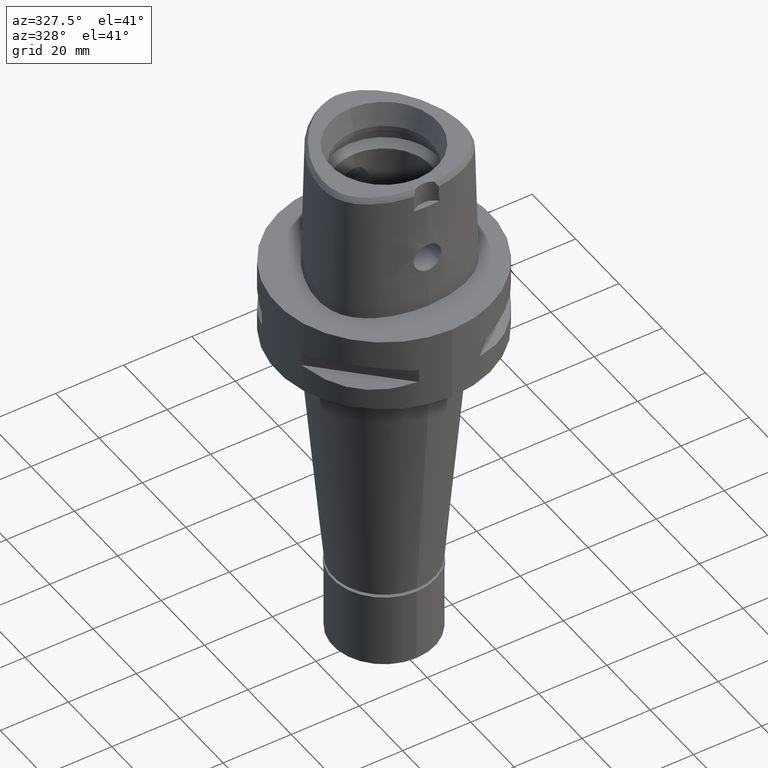
[diagram: clean part render]
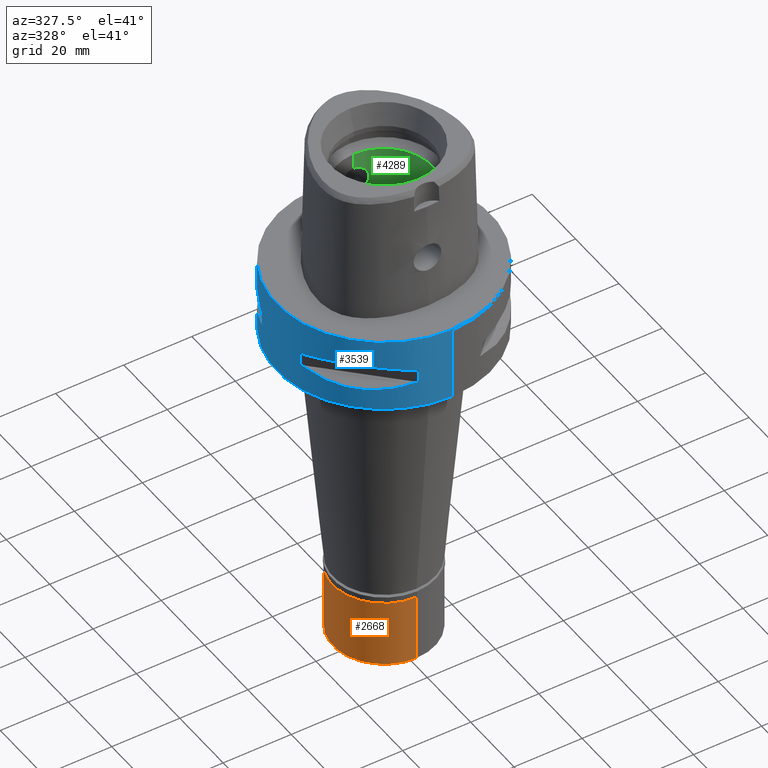
[diagram: same view with three faces highlighted in distinct colors, each labeled with its STEP entity id]
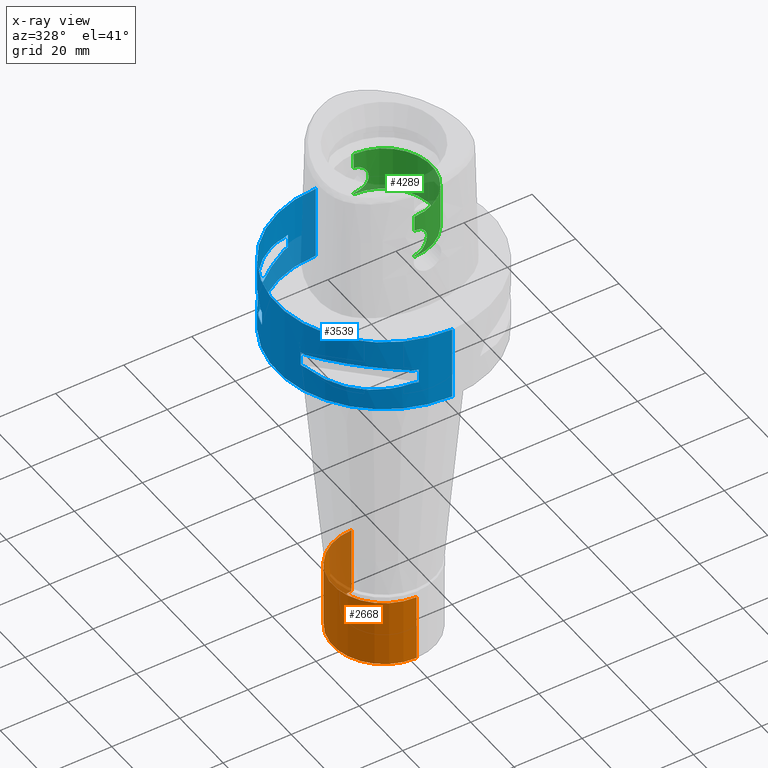
[diagram: x-ray of the same camera — body ghosted, the three highlighted faces saturated]
A machine part, auxiliary view with three faces highlighted in distinct colors.
The next image is the same camera in x-ray (body ghosted, the three faces saturated) — at least one of them is partly hidden behind the body in this view.
Their STEP definitions:

[orange] entity #2668 — the highlighted cylindrical surface (partial cylindrical patch) has radius 15 mm, axis along (0, 0, -1).
#65 = DIRECTION ( 'NONE',  ( 0.0000000000000000000, 0.0000000000000000000, -1.000000000000000000 ) ) ;
#223 = EDGE_LOOP ( 'NONE', ( #2487, #3779, #378, #726 ) ) ;
#235 = CARTESIAN_POINT ( 'NONE',  ( 0.0000000000000000000, 0.0000000000000000000, -22.00000000000000000 ) ) ;
#357 = DIRECTION ( 'NONE',  ( 0.0000000000000000000, 0.0000000000000000000, -1.000000000000000000 ) ) ;
#378 = ORIENTED_EDGE ( 'NONE', *, *, #5089, .T. ) ;
#513 = VECTOR ( 'NONE', #4003, 1000.000000000000000 ) ;
#644 = EDGE_CURVE ( 'NONE', #3334, #3359, #2375, .T. ) ;
#726 = ORIENTED_EDGE ( 'NONE', *, *, #2523, .T. ) ;
#910 = VERTEX_POINT ( 'NONE', #2765 ) ;
#1120 = CARTESIAN_POINT ( 'NONE',  ( 0.0000000000000000000, -15.00000000000000000, -2.000000000000000000 ) ) ;
#1251 = AXIS2_PLACEMENT_3D ( 'NONE', #2675, #357, #3516 ) ;
#1281 = VERTEX_POINT ( 'NONE', #5061 ) ;
#1458 = DIRECTION ( 'NONE',  ( 0.0000000000000000000, 1.000000000000000000, 0.0000000000000000000 ) ) ;
#1513 = CIRCLE ( 'NONE', #2183, 15.00000000000000000 ) ;
#1982 = AXIS2_PLACEMENT_3D ( 'NONE', #2066, #65, #5106 ) ;
#2066 = CARTESIAN_POINT ( 'NONE',  ( 0.0000000000000000000, 0.0000000000000000000, -2.000000000000000000 ) ) ;
#2183 = AXIS2_PLACEMENT_3D ( 'NONE', #235, #5009, #1458 ) ;
#2375 = LINE ( 'NONE', #2753, #513 ) ;
#2487 = ORIENTED_EDGE ( 'NONE', *, *, #3945, .T. ) ;
#2504 = DIRECTION ( 'NONE',  ( 0.0000000000000000000, 0.0000000000000000000, -1.000000000000000000 ) ) ;
#2523 = EDGE_CURVE ( 'NONE', #1281, #910, #2882, .T. ) ;
#2668 = ADVANCED_FACE ( 'NONE', ( #2695 ), #3800, .T. ) ;
#2675 = CARTESIAN_POINT ( 'NONE',  ( 0.0000000000000000000, 0.0000000000000000000, 0.0000000000000000000 ) ) ;
#2695 = FACE_OUTER_BOUND ( 'NONE', #223, .T. ) ;
#2753 = CARTESIAN_POINT ( 'NONE',  ( 0.0000000000000000000, -15.00000000000000000, -2.000000000000000000 ) ) ;
#2765 = CARTESIAN_POINT ( 'NONE',  ( 0.0000000000000000000, 15.00000000000000000, -22.00000000000000000 ) ) ;
#2882 = LINE ( 'NONE', #4107, #4986 ) ;
#3334 = VERTEX_POINT ( 'NONE', #1120 ) ;
#3359 = VERTEX_POINT ( 'NONE', #5013 ) ;
#3516 = DIRECTION ( 'NONE',  ( 0.0000000000000000000, -1.000000000000000000, 0.0000000000000000000 ) ) ;
#3779 = ORIENTED_EDGE ( 'NONE', *, *, #644, .F. ) ;
#3800 = CYLINDRICAL_SURFACE ( 'NONE', #1251, 15.00000000000000000 ) ;
#3945 = EDGE_CURVE ( 'NONE', #910, #3359, #1513, .T. ) ;
#4003 = DIRECTION ( 'NONE',  ( 0.0000000000000000000, 0.0000000000000000000, -1.000000000000000000 ) ) ;
#4107 = CARTESIAN_POINT ( 'NONE',  ( 0.0000000000000000000, 15.00000000000000000, -2.000000000000000000 ) ) ;
#4214 = CIRCLE ( 'NONE', #1982, 15.00000000000000000 ) ;
#4986 = VECTOR ( 'NONE', #2504, 1000.000000000000000 ) ;
#5009 = DIRECTION ( 'NONE',  ( 0.0000000000000000000, 0.0000000000000000000, 1.000000000000000000 ) ) ;
#5013 = CARTESIAN_POINT ( 'NONE',  ( 0.0000000000000000000, -15.00000000000000000, -22.00000000000000000 ) ) ;
#5061 = CARTESIAN_POINT ( 'NONE',  ( 0.0000000000000000000, 15.00000000000000000, -2.000000000000000000 ) ) ;
#5089 = EDGE_CURVE ( 'NONE', #3334, #1281, #4214, .T. ) ;
#5106 = DIRECTION ( 'NONE',  ( 0.0000000000000000000, -1.000000000000000000, 0.0000000000000000000 ) ) ;

[blue] entity #3539 — the highlighted cylindrical surface (partial cylindrical patch) has radius 31.5 mm, axis along (0, 0, -1).
#17 = VERTEX_POINT ( 'NONE', #2880 ) ;
#28 = CARTESIAN_POINT ( 'NONE',  ( -15.11986997310366299, 27.64634172018154246, -15.11207862403683144 ) ) ;
#68 = CARTESIAN_POINT ( 'NONE',  ( -24.23018836745557181, 20.18579225685711265, -15.78559396978928397 ) ) ;
#100 = CARTESIAN_POINT ( 'NONE',  ( -8.981198972019999616, -30.19251670572000279, -14.05000000000000071 ) ) ;
#161 = CARTESIAN_POINT ( 'NONE',  ( -26.64486562695712379, -16.80193241490734835, -15.38992683735741451 ) ) ;
#165 = VERTEX_POINT ( 'NONE', #4713 ) ;
#168 = B_SPLINE_CURVE_WITH_KNOTS ( 'NONE', 3,
 ( #1052, #2623, #660, #1880, #2248, #4265, #3851, #279, #3036, #5021, #4633, #327, #5077, #1079, #708, #3871, #2649, #4239, #687, #1522, #3463, #5046, #4314, #2349 ),
 .UNSPECIFIED., .F., .F.,
 ( 4, 1, 1, 1, 1, 1, 2, 2, 2, 1, 1, 1, 1, 1, 2, 2, 4 ),
 ( 0.0000000000000000000, 0.1249999999999937828, 0.1874999999999907296, 0.2187499999999890365, 0.2343749999999882316, 0.2421874999999878431, 0.2460937499999878708, 0.2499999999999878986, 0.4999999999999847899, 0.6249999999999832356, 0.6874999999999825695, 0.7187499999999821254, 0.7343749999999817923, 0.7421874999999815703, 0.7460937499999819034, 0.7499999999999821254, 1.000000000000000000 ),
 .UNSPECIFIED. ) ;
#178 = ORIENTED_EDGE ( 'NONE', *, *, #1699, .T. ) ;
#191 = CIRCLE ( 'NONE', #3910, 31.50000000000000000 ) ;
#195 = CARTESIAN_POINT ( 'NONE',  ( -14.89252659056261052, -27.86285265926905197, -15.10765629751539230 ) ) ;
#201 = CARTESIAN_POINT ( 'NONE',  ( -16.89910283486678821, -26.58330558444515290, -8.595535286924912199 ) ) ;
#218 = EDGE_CURVE ( 'NONE', #1122, #1640, #3490, .T. ) ;
#249 = DIRECTION ( 'NONE',  ( 0.0000000000000000000, 0.0000000000000000000, 1.000000000000000000 ) ) ;
#272 = VERTEX_POINT ( 'NONE', #2648 ) ;
#279 = CARTESIAN_POINT ( 'NONE',  ( -26.64486562695828553, 16.80193241490740874, -8.610073162640123456 ) ) ;
#283 = B_SPLINE_CURVE_WITH_KNOTS ( 'NONE', 3,
 ( #891, #4946, #2548, #975, #2854, #4051, #2935, #559, #4133, #201, #2121, #4867, #923, #509, #2957, #584, #1002, #2574, #4105, #4164, #1339, #1705, #613, #2095 ),
 .UNSPECIFIED., .F., .F.,
 ( 4, 1, 1, 1, 1, 1, 2, 2, 2, 1, 1, 1, 1, 1, 2, 2, 4 ),
 ( 0.0000000000000000000, 0.1249999999999937828, 0.1874999999999907296, 0.2187499999999890365, 0.2343749999999882316, 0.2421874999999878431, 0.2460937499999878708, 0.2499999999999878986, 0.4999999999999847899, 0.6249999999999832356, 0.6874999999999825695, 0.7187499999999821254, 0.7343749999999817923, 0.7421874999999815703, 0.7460937499999819034, 0.7499999999999821254, 1.000000000000000000 ),
 .UNSPECIFIED. ) ;
#296 = DIRECTION ( 'NONE',  ( 0.0000000000000000000, 0.0000000000000000000, -1.000000000000000000 ) ) ;
#327 = CARTESIAN_POINT ( 'NONE',  ( -23.89673728052539659, 20.65093790437828858, -8.160641950984063087 ) ) ;
#388 = CARTESIAN_POINT ( 'NONE',  ( -8.981198972017999438, -30.19251670572000279, -14.05000000000000071 ) ) ;
#402 = EDGE_CURVE ( 'NONE', #1449, #588, #3180, .T. ) ;
#418 = FACE_BOUND ( 'NONE', #4077, .T. ) ;
#441 = CARTESIAN_POINT ( 'NONE',  ( -29.71690375017999841, -10.44775724750000023, -14.05000000000000071 ) ) ;
#447 = VERTEX_POINT ( 'NONE', #3377 ) ;
#451 = ORIENTED_EDGE ( 'NONE', *, *, #553, .T. ) ;
#461 = CARTESIAN_POINT ( 'NONE',  ( -13.25636937904505785, 28.62019653468586355, -14.74888225541535292 ) ) ;
#473 = VERTEX_POINT ( 'NONE', #1411 ) ;
#488 = CARTESIAN_POINT ( 'NONE',  ( -16.70616724745912407, 26.70521063584489596, -15.37546661817712490 ) ) ;
#492 = EDGE_CURVE ( 'NONE', #1449, #17, #929, .T. ) ;
#509 = CARTESIAN_POINT ( 'NONE',  ( -24.23018836743738191, -20.18579225689131817, -8.214406030202187736 ) ) ;
#512 = ORIENTED_EDGE ( 'NONE', *, *, #402, .F. ) ;
#519 = CARTESIAN_POINT ( 'NONE',  ( -26.54368690921645069, 16.96123479564930747, -15.41365572341317147 ) ) ;
#530 = CARTESIAN_POINT ( 'NONE',  ( -21.46242677078074834, -23.08532645888130830, -15.83938991065315172 ) ) ;
#536 = VERTEX_POINT ( 'NONE', #4229 ) ;
#553 = EDGE_CURVE ( 'NONE', #1122, #1100, #595, .T. ) ;
#559 = CARTESIAN_POINT ( 'NONE',  ( -16.80193241490740874, -26.64486562695828553, -8.610073162640123456 ) ) ;
#584 = CARTESIAN_POINT ( 'NONE',  ( -26.01217882834028217, -17.76952662673343397, -8.473347783734256566 ) ) ;
#588 = VERTEX_POINT ( 'NONE', #2014 ) ;
#589 = AXIS2_PLACEMENT_3D ( 'NONE', #621, #3732, #1739 ) ;
#595 = CIRCLE ( 'NONE', #1252, 31.50000000000001776 ) ;
#608 = CARTESIAN_POINT ( 'NONE',  ( -17.35163608579770766, -26.29071741523690875, -15.46976201925451022 ) ) ;
#613 = CARTESIAN_POINT ( 'NONE',  ( -28.91382665369138749, -12.73197616787516040, -9.345326382460914516 ) ) ;
#621 = CARTESIAN_POINT ( 'NONE',  ( 0.0000000000000000000, 0.0000000000000000000, -9.950000000000001066 ) ) ;
#630 = DIRECTION ( 'NONE',  ( 0.0000000000000000000, 0.0000000000000000000, -1.000000000000000000 ) ) ;
#642 = CARTESIAN_POINT ( 'NONE',  ( -30.19251670572000279, 8.981198972017999438, -9.950000000000001066 ) ) ;
#652 = ORIENTED_EDGE ( 'NONE', *, *, #1457, .T. ) ;
#660 = CARTESIAN_POINT ( 'NONE',  ( -28.62019653468352942, 13.25636937905195722, -9.251117744580772850 ) ) ;
#687 = CARTESIAN_POINT ( 'NONE',  ( -17.05047092244551621, 26.48642424310436638, -8.573291165920331025 ) ) ;
#700 = DIRECTION ( 'NONE',  ( -0.9584925938322735872, 0.2851174276831918153, 0.0000000000000000000 ) ) ;
#708 = CARTESIAN_POINT ( 'NONE',  ( -18.59229662067374633, 25.43927894890470753, -8.371338736649670764 ) ) ;
#733 = AXIS2_PLACEMENT_3D ( 'NONE', #1264, #3545, #847 ) ;
#764 = ORIENTED_EDGE ( 'NONE', *, *, #4352, .F. ) ;
#770 = LINE ( 'NONE', #388, #3473 ) ;
#786 = EDGE_CURVE ( 'NONE', #2906, #1855, #283, .T. ) ;
#796 = CARTESIAN_POINT ( 'NONE',  ( -16.86571563436660171, 26.60451452154748608, -15.39949295786010097 ) ) ;
#806 = EDGE_CURVE ( 'NONE', #1250, #473, #2145, .T. ) ;
#810 = DIRECTION ( 'NONE',  ( 0.0000000000000000000, 0.0000000000000000000, -1.000000000000000000 ) ) ;
#811 = AXIS2_PLACEMENT_3D ( 'NONE', #5012, #1949, #2741 ) ;
#830 = LINE ( 'NONE', #3605, #5043 ) ;
#847 = DIRECTION ( 'NONE',  ( -0.9433937698468619626, 0.3316748332540863653, 0.0000000000000000000 ) ) ;
#850 = CARTESIAN_POINT ( 'NONE',  ( -26.29071741523710060, 17.35163608579668804, -15.46976201925415317 ) ) ;
#891 = CARTESIAN_POINT ( 'NONE',  ( -10.44775724750000023, -29.71690375017999841, -9.949999999998999201 ) ) ;
#897 = DIRECTION ( 'NONE',  ( 0.0000000000000000000, 0.0000000000000000000, -1.000000000000000000 ) ) ;
#900 = CARTESIAN_POINT ( 'NONE',  ( -18.86897208075099996, 25.32725744466366891, -15.69588095933659488 ) ) ;
#915 = VECTOR ( 'NONE', #1679, 1000.000000000000000 ) ;
#923 = CARTESIAN_POINT ( 'NONE',  ( -23.08532645887192203, -21.46242677079834138, -8.160610089341528095 ) ) ;
#929 = CIRCLE ( 'NONE', #2812, 31.50000000000000711 ) ;
#945 = CARTESIAN_POINT ( 'NONE',  ( -20.18579225686149314, -24.23018836745477245, -15.78559396979075125 ) ) ;
#964 = CARTESIAN_POINT ( 'NONE',  ( -30.19251670572000279, 8.981198972019999616, -14.05000000000000071 ) ) ;
#975 = CARTESIAN_POINT ( 'NONE',  ( -15.11986997310926206, -27.64634172018019953, -8.887921375959432879 ) ) ;
#993 = CARTESIAN_POINT ( 'NONE',  ( -26.60451452154724805, -16.86571563436727317, -15.39949295786030348 ) ) ;
#998 = EDGE_CURVE ( 'NONE', #3671, #1204, #1199, .T. ) ;
#1002 = CARTESIAN_POINT ( 'NONE',  ( -26.29071741523354078, -17.35163608580538863, -8.530237980741757653 ) ) ;
#1017 = CARTESIAN_POINT ( 'NONE',  ( -29.71690375017999841, 10.44775724750000023, -14.05000000000000071 ) ) ;
#1052 = CARTESIAN_POINT ( 'NONE',  ( -29.71690375017999841, 10.44775724750000023, -9.949999999998999201 ) ) ;
#1079 = CARTESIAN_POINT ( 'NONE',  ( -20.18579225689131817, 24.23018836743738191, -8.214406030202187736 ) ) ;
#1100 = VERTEX_POINT ( 'NONE', #1017 ) ;
#1122 = VERTEX_POINT ( 'NONE', #964 ) ;
#1180 = CIRCLE ( 'NONE', #2243, 31.50000000000000711 ) ;
#1183 = AXIS2_PLACEMENT_3D ( 'NONE', #4120, #2536, #4455 ) ;
#1199 = LINE ( 'NONE', #2246, #2324 ) ;
#1204 = VERTEX_POINT ( 'NONE', #4330 ) ;
#1215 = CARTESIAN_POINT ( 'NONE',  ( -23.08532645888177015, 21.46242677077824368, -15.83938991065229196 ) ) ;
#1220 = DIRECTION ( 'NONE',  ( 0.0000000000000000000, -1.000000000000000000, 0.0000000000000000000 ) ) ;
#1239 = CARTESIAN_POINT ( 'NONE',  ( -26.42800887047543767, 17.14106442934696162, -15.43984550238475251 ) ) ;
#1250 = VERTEX_POINT ( 'NONE', #3914 ) ;
#1252 = AXIS2_PLACEMENT_3D ( 'NONE', #3792, #296, #700 ) ;
#1264 = CARTESIAN_POINT ( 'NONE',  ( 0.0000000000000000000, 0.0000000000000000000, -9.950000000000001066 ) ) ;
#1268 = CARTESIAN_POINT ( 'NONE',  ( -16.80193241490601253, 26.64486562695759631, -15.38992683735703437 ) ) ;
#1295 = CARTESIAN_POINT ( 'NONE',  ( -26.01217882834774997, 17.76952662671796901, -15.52665221626049608 ) ) ;
#1311 = ORIENTED_EDGE ( 'NONE', *, *, #806, .F. ) ;
#1333 = CARTESIAN_POINT ( 'NONE',  ( -17.14106442934748742, -26.42800887047532754, -15.43984550238493547 ) ) ;
#1339 = CARTESIAN_POINT ( 'NONE',  ( -26.54368690921734952, -16.96123479565030934, -8.586344276584055635 ) ) ;
#1342 = CIRCLE ( 'NONE', #3327, 31.50000000000001776 ) ;
#1368 = CARTESIAN_POINT ( 'NONE',  ( -8.981198972017999438, 30.19251670572000279, -9.950000000000001066 ) ) ;
#1410 = EDGE_CURVE ( 'NONE', #3378, #1100, #1416, .T. ) ;
#1411 = CARTESIAN_POINT ( 'NONE',  ( -8.981198972017999438, 30.19251670572000279, -14.05000000000000071 ) ) ;
#1416 = B_SPLINE_CURVE_WITH_KNOTS ( 'NONE', 3,
 ( #4824, #4406, #461, #28, #3177, #2382, #488, #1268, #796, #2837, #900, #1689, #1215, #68, #1655, #1295, #850, #1239, #4061, #2105, #519, #3233, #3678, #4754 ),
 .UNSPECIFIED., .F., .F.,
 ( 4, 1, 1, 1, 1, 1, 2, 2, 2, 1, 1, 1, 1, 1, 2, 2, 4 ),
 ( 0.0000000000000000000, 0.1249999999999917843, 0.1874999999999877320, 0.2187499999999857059, 0.2343749999999849287, 0.2421874999999843736, 0.2460937499999842071, 0.2499999999999840128, 0.4999999999999846789, 0.6249999999999850120, 0.6874999999999850120, 0.7187499999999851230, 0.7343749999999852340, 0.7421874999999852340, 0.7460937499999851230, 0.7499999999999851230, 1.000000000000000000 ),
 .UNSPECIFIED. ) ;
#1449 = VERTEX_POINT ( 'NONE', #441 ) ;
#1457 = EDGE_CURVE ( 'NONE', #3378, #473, #1180, .T. ) ;
#1470 = CARTESIAN_POINT ( 'NONE',  ( 0.0000000000000000000, 0.0000000000000000000, -14.05000000000000071 ) ) ;
#1522 = CARTESIAN_POINT ( 'NONE',  ( -16.98999780422272110, 26.52527364208619431, -8.582119012333926378 ) ) ;
#1541 = VERTEX_POINT ( 'NONE', #100 ) ;
#1544 = DIRECTION ( 'NONE',  ( 0.0000000000000000000, 0.0000000000000000000, -1.000000000000000000 ) ) ;
#1616 = CARTESIAN_POINT ( 'NONE',  ( 0.0000000000000000000, 0.0000000000000000000, 5.665000000000000036 ) ) ;
#1640 = VERTEX_POINT ( 'NONE', #642 ) ;
#1655 = CARTESIAN_POINT ( 'NONE',  ( -25.43927894891815811, 18.59229662064788258, -15.62866126334327710 ) ) ;
#1665 = ORIENTED_EDGE ( 'NONE', *, *, #3422, .T. ) ;
#1679 = DIRECTION ( 'NONE',  ( 0.0000000000000000000, 0.0000000000000000000, -1.000000000000000000 ) ) ;
#1689 = CARTESIAN_POINT ( 'NONE',  ( -20.65093790435489396, 23.89673728056195756, -15.83935804901932087 ) ) ;
#1699 = EDGE_CURVE ( 'NONE', #2906, #1761, #2807, .T. ) ;
#1705 = CARTESIAN_POINT ( 'NONE',  ( -27.86285265926838051, -14.89252659056605488, -8.892343702481497303 ) ) ;
#1739 = DIRECTION ( 'NONE',  ( -0.3316748332540863653, -0.9433937698468619626, 0.0000000000000000000 ) ) ;
#1761 = VERTEX_POINT ( 'NONE', #3806 ) ;
#1771 = CARTESIAN_POINT ( 'NONE',  ( -30.19251670572000279, -8.981198972019999616, -9.950000000000001066 ) ) ;
#1855 = VERTEX_POINT ( 'NONE', #3346 ) ;
#1880 = CARTESIAN_POINT ( 'NONE',  ( -27.64634172018019953, 15.11986997310926206, -8.887921375959432879 ) ) ;
#1901 = ORIENTED_EDGE ( 'NONE', *, *, #1410, .F. ) ;
#1949 = DIRECTION ( 'NONE',  ( 0.0000000000000000000, 0.0000000000000000000, 1.000000000000000000 ) ) ;
#2000 = FACE_OUTER_BOUND ( 'NONE', #3720, .T. ) ;
#2014 = CARTESIAN_POINT ( 'NONE',  ( -10.44775724750000023, -29.71690375017999841, -14.05000000000000071 ) ) ;
#2095 = CARTESIAN_POINT ( 'NONE',  ( -29.71690375017999841, -10.44775724750000023, -9.949999999998999201 ) ) ;
#2105 = CARTESIAN_POINT ( 'NONE',  ( -26.52527364208594562, 16.98999780422062500, -15.41788098766312487 ) ) ;
#2115 = CARTESIAN_POINT ( 'NONE',  ( -17.76952662671988392, -26.01217882834739470, -15.52665221626113912 ) ) ;
#2121 = CARTESIAN_POINT ( 'NONE',  ( -18.86897208071351528, -25.32725744468778117, -8.304119040666874341 ) ) ;
#2145 = LINE ( 'NONE', #1368, #915 ) ;
#2168 = CARTESIAN_POINT ( 'NONE',  ( -16.98999780422078132, -26.52527364208593141, -15.41788098766319060 ) ) ;
#2243 = AXIS2_PLACEMENT_3D ( 'NONE', #2860, #4428, #4451 ) ;
#2246 = CARTESIAN_POINT ( 'NONE',  ( 0.0000000000000000000, 31.50000000000000000, 0.0000000000000000000 ) ) ;
#2248 = CARTESIAN_POINT ( 'NONE',  ( -27.11872488589111541, 16.03138450079000776, -8.731195798919257456 ) ) ;
#2313 = DIRECTION ( 'NONE',  ( -0.9433937698468619626, -0.3316748332540863653, 0.0000000000000000000 ) ) ;
#2324 = VECTOR ( 'NONE', #3798, 1000.000000000000000 ) ;
#2349 = CARTESIAN_POINT ( 'NONE',  ( -10.44775724750000023, 29.71690375017999841, -9.949999999998999201 ) ) ;
#2350 = ORIENTED_EDGE ( 'NONE', *, *, #4108, .T. ) ;
#2366 = ORIENTED_EDGE ( 'NONE', *, *, #218, .F. ) ;
#2382 = CARTESIAN_POINT ( 'NONE',  ( -16.48208282229096611, 26.84474411198699784, -15.34094883778013596 ) ) ;
#2397 = DIRECTION ( 'NONE',  ( 0.0000000000000000000, -1.000000000000000000, 0.0000000000000000000 ) ) ;
#2493 = CARTESIAN_POINT ( 'NONE',  ( -29.31542262584164504, -11.58970337495982328, -14.35229357167352049 ) ) ;
#2521 = ORIENTED_EDGE ( 'NONE', *, *, #2676, .T. ) ;
#2536 = DIRECTION ( 'NONE',  ( 0.0000000000000000000, 0.0000000000000000000, 1.000000000000000000 ) ) ;
#2542 = CARTESIAN_POINT ( 'NONE',  ( -26.84474411198545596, -16.48208282229538213, -15.34094883778132790 ) ) ;
#2548 = CARTESIAN_POINT ( 'NONE',  ( -13.25636937905195722, -28.62019653468352942, -9.251117744580772850 ) ) ;
#2569 = CARTESIAN_POINT ( 'NONE',  ( -26.58330558444475145, -16.89910283486517528, -15.40446471307230070 ) ) ;
#2574 = CARTESIAN_POINT ( 'NONE',  ( -26.42800887047403791, -17.14106442935189989, -8.560154497611819124 ) ) ;
#2577 = AXIS2_PLACEMENT_3D ( 'NONE', #1616, #4778, #1220 ) ;
#2618 = ORIENTED_EDGE ( 'NONE', *, *, #2785, .F. ) ;
#2623 = CARTESIAN_POINT ( 'NONE',  ( -29.31542262584386904, 11.58970337495283864, -9.647706428326454642 ) ) ;
#2648 = CARTESIAN_POINT ( 'NONE',  ( 0.0000000000000000000, -31.50000000000000000, 0.0000000000000000000 ) ) ;
#2649 = CARTESIAN_POINT ( 'NONE',  ( -17.35163608580538863, 26.29071741523354078, -8.530237980741757653 ) ) ;
#2676 = EDGE_CURVE ( 'NONE', #1541, #588, #1342, .T. ) ;
#2731 = EDGE_CURVE ( 'NONE', #536, #447, #168, .T. ) ;
#2741 = DIRECTION ( 'NONE',  ( -0.9584925938322735872, -0.2851174276831918153, 0.0000000000000000000 ) ) ;
#2744 = DIRECTION ( 'NONE',  ( 0.0000000000000000000, 1.000000000000000000, 0.0000000000000000000 ) ) ;
#2785 = EDGE_CURVE ( 'NONE', #3714, #17, #4559, .T. ) ;
#2807 = CIRCLE ( 'NONE', #589, 31.50000000000000711 ) ;
#2812 = AXIS2_PLACEMENT_3D ( 'NONE', #4655, #630, #2313 ) ;
#2833 = DIRECTION ( 'NONE',  ( 0.0000000000000000000, 0.0000000000000000000, 1.000000000000000000 ) ) ;
#2837 = CARTESIAN_POINT ( 'NONE',  ( -16.89910283486523923, 26.58330558444462355, -15.40446471307224741 ) ) ;
#2846 = CARTESIAN_POINT ( 'NONE',  ( -27.64634172017658642, -15.11986997311774417, -15.11207862404057423 ) ) ;
#2851 = ORIENTED_EDGE ( 'NONE', *, *, #786, .F. ) ;
#2854 = CARTESIAN_POINT ( 'NONE',  ( -16.03138450079000776, -27.11872488589111541, -8.731195798919257456 ) ) ;
#2860 = CARTESIAN_POINT ( 'NONE',  ( 0.0000000000000000000, 0.0000000000000000000, -14.05000000000000071 ) ) ;
#2869 = ORIENTED_EDGE ( 'NONE', *, *, #3789, .T. ) ;
#2874 = ORIENTED_EDGE ( 'NONE', *, *, #998, .T. ) ;
#2880 = CARTESIAN_POINT ( 'NONE',  ( -30.19251670572000279, -8.981198972017999438, -14.05000000000000071 ) ) ;
#2905 = CARTESIAN_POINT ( 'NONE',  ( -17.05047092244258522, -26.48642424310472876, -15.42670883407663496 ) ) ;
#2906 = VERTEX_POINT ( 'NONE', #3856 ) ;
#2935 = CARTESIAN_POINT ( 'NONE',  ( -16.70616724746083648, -26.70521063584543597, -8.624533381819961875 ) ) ;
#2957 = CARTESIAN_POINT ( 'NONE',  ( -25.43927894890470753, -18.59229662067374633, -8.371338736649670764 ) ) ;
#3036 = CARTESIAN_POINT ( 'NONE',  ( -26.60451452154827479, 16.86571563436777410, -8.600507042137108371 ) ) ;
#3133 = FACE_BOUND ( 'NONE', #4127, .T. ) ;
#3137 = ORIENTED_EDGE ( 'NONE', *, *, #5024, .F. ) ;
#3177 = CARTESIAN_POINT ( 'NONE',  ( -16.03138450078630584, 27.11872488589149199, -15.26880420107739234 ) ) ;
#3180 = B_SPLINE_CURVE_WITH_KNOTS ( 'NONE', 3,
 ( #4463, #2493, #4544, #2846, #4076, #2542, #4521, #161, #993, #2569, #3333, #4126, #530, #945, #3299, #2115, #608, #1333, #2905, #2168, #4437, #195, #4990, #4962 ),
 .UNSPECIFIED., .F., .F.,
 ( 4, 1, 1, 1, 1, 1, 2, 2, 2, 1, 1, 1, 1, 1, 2, 2, 4 ),
 ( 0.0000000000000000000, 0.1249999999999912292, 0.1874999999999869826, 0.2187499999999850120, 0.2343749999999839295, 0.2421874999999835409, 0.2460937499999835687, 0.2499999999999836242, 0.4999999999999924505, 0.6249999999999968914, 0.6874999999999992228, 0.7187500000000003331, 0.7343750000000009992, 0.7421875000000014433, 0.7460937500000016653, 0.7500000000000019984, 1.000000000000000000 ),
 .UNSPECIFIED. ) ;
#3211 = DIRECTION ( 'NONE',  ( 0.0000000000000000000, 0.0000000000000000000, -1.000000000000000000 ) ) ;
#3233 = CARTESIAN_POINT ( 'NONE',  ( -27.86285265926610322, 14.89252659057099493, -15.10765629751760031 ) ) ;
#3297 = CIRCLE ( 'NONE', #811, 31.50000000000001776 ) ;
#3299 = CARTESIAN_POINT ( 'NONE',  ( -18.59229662065117594, -25.43927894891756125, -15.62866126334438732 ) ) ;
#3310 = ORIENTED_EDGE ( 'NONE', *, *, #4651, .T. ) ;
#3324 = CARTESIAN_POINT ( 'NONE',  ( 0.0000000000000000000, 31.50000000000000000, 0.0000000000000000000 ) ) ;
#3327 = AXIS2_PLACEMENT_3D ( 'NONE', #1470, #1544, #3438 ) ;
#3333 = CARTESIAN_POINT ( 'NONE',  ( -25.32725744465475515, -18.86897208075581034, -15.69588095933493932 ) ) ;
#3346 = CARTESIAN_POINT ( 'NONE',  ( -29.71690375017999841, -10.44775724750000023, -9.949999999998999201 ) ) ;
#3364 = ORIENTED_EDGE ( 'NONE', *, *, #492, .T. ) ;
#3377 = CARTESIAN_POINT ( 'NONE',  ( -10.44775724750000023, 29.71690375017999841, -9.949999999998999201 ) ) ;
#3378 = VERTEX_POINT ( 'NONE', #4334 ) ;
#3420 = CIRCLE ( 'NONE', #1183, 31.50000000000001776 ) ;
#3422 = EDGE_CURVE ( 'NONE', #1204, #165, #3575, .T. ) ;
#3438 = DIRECTION ( 'NONE',  ( -0.2851174276831918153, -0.9584925938322735872, 0.0000000000000000000 ) ) ;
#3463 = CARTESIAN_POINT ( 'NONE',  ( -16.96123479565030934, 26.54368690921734952, -8.586344276584055635 ) ) ;
#3473 = VECTOR ( 'NONE', #2833, 1000.000000000000000 ) ;
#3490 = LINE ( 'NONE', #4664, #4909 ) ;
#3539 = ADVANCED_FACE ( 'NONE', ( #2000, #3133, #418 ), #3992, .T. ) ;
#3545 = DIRECTION ( 'NONE',  ( 0.0000000000000000000, 0.0000000000000000000, 1.000000000000000000 ) ) ;
#3575 = CIRCLE ( 'NONE', #4068, 31.50000000000000000 ) ;
#3578 = DIRECTION ( 'NONE',  ( 0.0000000000000000000, 0.0000000000000000000, 1.000000000000000000 ) ) ;
#3601 = CARTESIAN_POINT ( 'NONE',  ( 0.0000000000000000000, 0.0000000000000000000, -22.00000000000000000 ) ) ;
#3605 = CARTESIAN_POINT ( 'NONE',  ( 0.0000000000000000000, -31.50000000000000000, 0.0000000000000000000 ) ) ;
#3671 = VERTEX_POINT ( 'NONE', #3324 ) ;
#3678 = CARTESIAN_POINT ( 'NONE',  ( -28.91382665368951876, 12.73197616788052500, -14.65467361753852060 ) ) ;
#3714 = VERTEX_POINT ( 'NONE', #1771 ) ;
#3720 = EDGE_LOOP ( 'NONE', ( #1665, #764, #2350, #2874 ) ) ;
#3732 = DIRECTION ( 'NONE',  ( 0.0000000000000000000, 0.0000000000000000000, 1.000000000000000000 ) ) ;
#3789 = EDGE_CURVE ( 'NONE', #1250, #447, #3420, .T. ) ;
#3792 = CARTESIAN_POINT ( 'NONE',  ( 0.0000000000000000000, 0.0000000000000000000, -14.05000000000000071 ) ) ;
#3798 = DIRECTION ( 'NONE',  ( 0.0000000000000000000, 0.0000000000000000000, -1.000000000000000000 ) ) ;
#3806 = CARTESIAN_POINT ( 'NONE',  ( -8.981198972017999438, -30.19251670572000279, -9.950000000000001066 ) ) ;
#3851 = CARTESIAN_POINT ( 'NONE',  ( -26.70521063584543597, 16.70616724746083648, -8.624533381819961875 ) ) ;
#3856 = CARTESIAN_POINT ( 'NONE',  ( -10.44775724750000023, -29.71690375017999841, -9.949999999998999201 ) ) ;
#3871 = CARTESIAN_POINT ( 'NONE',  ( -17.76952662673343397, 26.01217882834028217, -8.473347783734256566 ) ) ;
#3910 = AXIS2_PLACEMENT_3D ( 'NONE', #4366, #810, #2397 ) ;
#3914 = CARTESIAN_POINT ( 'NONE',  ( -8.981198972019999616, 30.19251670572000279, -9.950000000000001066 ) ) ;
#3992 = CYLINDRICAL_SURFACE ( 'NONE', #2577, 31.50000000000000000 ) ;
#4051 = CARTESIAN_POINT ( 'NONE',  ( -16.48208282229338195, -26.84474411198721455, -8.659051162216787390 ) ) ;
#4061 = CARTESIAN_POINT ( 'NONE',  ( -26.48642424310478205, 17.05047092244226903, -15.42670883407652305 ) ) ;
#4068 = AXIS2_PLACEMENT_3D ( 'NONE', #3601, #3578, #2744 ) ;
#4076 = CARTESIAN_POINT ( 'NONE',  ( -27.11872488588860008, -16.03138450079452682, -15.26880420107959146 ) ) ;
#4077 = EDGE_LOOP ( 'NONE', ( #178, #3137, #2521, #512, #3364, #2618, #3310, #2851 ) ) ;
#4105 = CARTESIAN_POINT ( 'NONE',  ( -26.48642424310436638, -17.05047092244551621, -8.573291165920331025 ) ) ;
#4108 = EDGE_CURVE ( 'NONE', #272, #3671, #191, .T. ) ;
#4120 = CARTESIAN_POINT ( 'NONE',  ( 0.0000000000000000000, 0.0000000000000000000, -9.950000000000001066 ) ) ;
#4126 = CARTESIAN_POINT ( 'NONE',  ( -23.89673728055697310, -20.65093790435582122, -15.83935804901768307 ) ) ;
#4127 = EDGE_LOOP ( 'NONE', ( #4159, #2366, #451, #1901, #652, #1311, #2869, #5000 ) ) ;
#4133 = CARTESIAN_POINT ( 'NONE',  ( -16.86571563436777410, -26.60451452154827479, -8.600507042137108371 ) ) ;
#4159 = ORIENTED_EDGE ( 'NONE', *, *, #5011, .T. ) ;
#4164 = CARTESIAN_POINT ( 'NONE',  ( -26.52527364208619431, -16.98999780422272110, -8.582119012333926378 ) ) ;
#4172 = CARTESIAN_POINT ( 'NONE',  ( -30.19251670572000279, -8.981198972017999438, -9.950000000000001066 ) ) ;
#4229 = CARTESIAN_POINT ( 'NONE',  ( -29.71690375017999841, 10.44775724750000023, -9.949999999998999201 ) ) ;
#4234 = VECTOR ( 'NONE', #897, 1000.000000000000000 ) ;
#4239 = CARTESIAN_POINT ( 'NONE',  ( -17.14106442935189989, 26.42800887047403791, -8.560154497611819124 ) ) ;
#4265 = CARTESIAN_POINT ( 'NONE',  ( -26.84474411198721455, 16.48208282229338195, -8.659051162216787390 ) ) ;
#4314 = CARTESIAN_POINT ( 'NONE',  ( -12.73197616787516040, 28.91382665369138749, -9.345326382460914516 ) ) ;
#4330 = CARTESIAN_POINT ( 'NONE',  ( 0.0000000000000000000, 31.50000000000000000, -22.00000000000000000 ) ) ;
#4334 = CARTESIAN_POINT ( 'NONE',  ( -10.44775724750000023, 29.71690375017999841, -14.05000000000000071 ) ) ;
#4352 = EDGE_CURVE ( 'NONE', #272, #165, #830, .T. ) ;
#4366 = CARTESIAN_POINT ( 'NONE',  ( 0.0000000000000000000, 0.0000000000000000000, 0.0000000000000000000 ) ) ;
#4376 = CIRCLE ( 'NONE', #733, 31.50000000000000711 ) ;
#4406 = CARTESIAN_POINT ( 'NONE',  ( -11.58970337494912251, 29.31542262584540737, -14.35229357167066233 ) ) ;
#4428 = DIRECTION ( 'NONE',  ( 0.0000000000000000000, 0.0000000000000000000, -1.000000000000000000 ) ) ;
#4437 = CARTESIAN_POINT ( 'NONE',  ( -16.96123479564944247, -26.54368690921640450, -15.41365572341321766 ) ) ;
#4451 = DIRECTION ( 'NONE',  ( -0.3316748332540863653, 0.9433937698468619626, 0.0000000000000000000 ) ) ;
#4455 = DIRECTION ( 'NONE',  ( -0.2851174276831918153, 0.9584925938322735872, 0.0000000000000000000 ) ) ;
#4463 = CARTESIAN_POINT ( 'NONE',  ( -29.71690375017999841, -10.44775724750000023, -14.05000000000000071 ) ) ;
#4521 = CARTESIAN_POINT ( 'NONE',  ( -26.70521063584408950, -16.70616724746141202, -15.37546661817775373 ) ) ;
#4544 = CARTESIAN_POINT ( 'NONE',  ( -28.62019653467925551, -13.25636937906381974, -14.74888225542034448 ) ) ;
#4559 = LINE ( 'NONE', #4172, #4234 ) ;
#4633 = CARTESIAN_POINT ( 'NONE',  ( -25.32725744468778117, 18.86897208071351528, -8.304119040666874341 ) ) ;
#4651 = EDGE_CURVE ( 'NONE', #3714, #1855, #3297, .T. ) ;
#4655 = CARTESIAN_POINT ( 'NONE',  ( 0.0000000000000000000, 0.0000000000000000000, -14.05000000000000071 ) ) ;
#4664 = CARTESIAN_POINT ( 'NONE',  ( -30.19251670572000279, 8.981198972017999438, -14.05000000000000071 ) ) ;
#4713 = CARTESIAN_POINT ( 'NONE',  ( 0.0000000000000000000, -31.50000000000000000, -22.00000000000000000 ) ) ;
#4754 = CARTESIAN_POINT ( 'NONE',  ( -29.71690375017999841, 10.44775724750000023, -14.05000000000000071 ) ) ;
#4778 = DIRECTION ( 'NONE',  ( 0.0000000000000000000, 0.0000000000000000000, -1.000000000000000000 ) ) ;
#4824 = CARTESIAN_POINT ( 'NONE',  ( -10.44775724750000023, 29.71690375017999841, -14.05000000000000071 ) ) ;
#4867 = CARTESIAN_POINT ( 'NONE',  ( -20.65093790437828858, -23.89673728052539659, -8.160641950984063087 ) ) ;
#4909 = VECTOR ( 'NONE', #249, 1000.000000000000000 ) ;
#4946 = CARTESIAN_POINT ( 'NONE',  ( -11.58970337495283864, -29.31542262584386904, -9.647706428326454642 ) ) ;
#4962 = CARTESIAN_POINT ( 'NONE',  ( -10.44775724750000023, -29.71690375017999841, -14.05000000000000071 ) ) ;
#4990 = CARTESIAN_POINT ( 'NONE',  ( -12.73197616787212993, -28.91382665369246752, -14.65467361753630549 ) ) ;
#5000 = ORIENTED_EDGE ( 'NONE', *, *, #2731, .F. ) ;
#5011 = EDGE_CURVE ( 'NONE', #536, #1640, #4376, .T. ) ;
#5012 = CARTESIAN_POINT ( 'NONE',  ( 0.0000000000000000000, 0.0000000000000000000, -9.950000000000001066 ) ) ;
#5021 = CARTESIAN_POINT ( 'NONE',  ( -26.58330558444515290, 16.89910283486678821, -8.595535286924912199 ) ) ;
#5024 = EDGE_CURVE ( 'NONE', #1541, #1761, #770, .T. ) ;
#5043 = VECTOR ( 'NONE', #3211, 1000.000000000000000 ) ;
#5046 = CARTESIAN_POINT ( 'NONE',  ( -14.89252659056605488, 27.86285265926838051, -8.892343702481497303 ) ) ;
#5077 = CARTESIAN_POINT ( 'NONE',  ( -21.46242677079834138, 23.08532645887192203, -8.160610089341528095 ) ) ;

[green] entity #4289 — the highlighted cylindrical surface (partial cylindrical patch) has radius 14 mm, axis along (0, 0, -1).
#21 = CARTESIAN_POINT ( 'NONE',  ( 2.935444872375262637, 13.68884853175270422, 18.29060286011752723 ) ) ;
#30 = EDGE_CURVE ( 'NONE', #3920, #1908, #4400, .T. ) ;
#33 = CARTESIAN_POINT ( 'NONE',  ( 1.773869829254197228, -13.88717198021018717, 11.85856959830013402 ) ) ;
#39 = CARTESIAN_POINT ( 'NONE',  ( 3.792115437646679243, 13.47677934324684657, 16.92282825343409058 ) ) ;
#52 = CARTESIAN_POINT ( 'NONE',  ( 2.268773195310919366, -13.81494468099972117, 12.14511832105054800 ) ) ;
#61 = CARTESIAN_POINT ( 'NONE',  ( 2.794188265665984883, 13.71831884113747613, 12.56820068599706985 ) ) ;
#75 = CARTESIAN_POINT ( 'NONE',  ( 2.256430671655175413, -13.81696743696902985, 12.13681261214186691 ) ) ;
#88 = CARTESIAN_POINT ( 'NONE',  ( 3.737862436382984210, 13.49191471466118131, 13.94085186772397122 ) ) ;
#106 = CARTESIAN_POINT ( 'NONE',  ( 3.393648836074186104, -13.58244002078084911, 13.28961777949049328 ) ) ;
#116 = CARTESIAN_POINT ( 'NONE',  ( 3.518019159262221862, 13.55099469856486749, 13.48901570195362432 ) ) ;
#130 = CARTESIAN_POINT ( 'NONE',  ( 3.770305607764555589, -13.48287202864340983, 14.02087226159932598 ) ) ;
#139 = CARTESIAN_POINT ( 'NONE',  ( 1.559041427489886278, 13.91280564626705818, 19.23793945981500997 ) ) ;
#141 = DIRECTION ( 'NONE',  ( 0.0000000000000000000, 0.0000000000000000000, -1.000000000000000000 ) ) ;
#173 = ORIENTED_EDGE ( 'NONE', *, *, #30, .T. ) ;
#200 = CARTESIAN_POINT ( 'NONE',  ( 1.832682128947450639, 13.87954668815114267, 19.11223895308327414 ) ) ;
#225 = CARTESIAN_POINT ( 'NONE',  ( 3.354718119037594981, -13.59210031745545955, 17.76901166034746993 ) ) ;
#248 = CARTESIAN_POINT ( 'NONE',  ( 2.230287417959103902, -13.82119696819859556, 18.88058087293870813 ) ) ;
#264 = VECTOR ( 'NONE', #1495, 1000.000000000000000 ) ;
#276 = CARTESIAN_POINT ( 'NONE',  ( 0.5031329879872217248, -13.99299628181930721, 19.52713608390235223 ) ) ;
#301 = CARTESIAN_POINT ( 'NONE',  ( 3.300146341774500947, -13.60553517928263823, 17.84781835532356453 ) ) ;
#325 = CARTESIAN_POINT ( 'NONE',  ( 2.217825895404998970, -13.82320329824214689, 18.88877091521868579 ) ) ;
#332 = CARTESIAN_POINT ( 'NONE',  ( 0.5031375785651610588, 13.99299620741434325, 11.47286437004442305 ) ) ;
#384 = CARTESIAN_POINT ( 'NONE',  ( 1.307187133397777368, 13.93893568339380096, 11.66569962606505406 ) ) ;
#406 = CARTESIAN_POINT ( 'NONE',  ( 3.144628172867338201, 13.64250443836072435, 18.05308396090352474 ) ) ;
#419 = CARTESIAN_POINT ( 'NONE',  ( 2.474909159318730900, -13.77946166276214512, 12.29346908457493903 ) ) ;
#434 = CARTESIAN_POINT ( 'NONE',  ( 3.362135645915919735, 13.59026426608101623, 13.24199978628648466 ) ) ;
#445 = CARTESIAN_POINT ( 'NONE',  ( 3.267860856862455865, -13.61367823521695719, 13.10390269889959036 ) ) ;
#453 = CARTESIAN_POINT ( 'NONE',  ( 3.850558670354384372, 13.46064117905768498, 14.21385490519483774 ) ) ;
#466 = CARTESIAN_POINT ( 'NONE',  ( 1.643124464793714656, -13.90317117702281990, 11.79805916110036890 ) ) ;
#471 = CARTESIAN_POINT ( 'NONE',  ( 0.0000000000000000000, 14.00000000000000000, 19.55000000000000071 ) ) ;
#478 = CARTESIAN_POINT ( 'NONE',  ( 3.344202712280511136, 13.59470072215733438, 13.21548413948281997 ) ) ;
#495 = CARTESIAN_POINT ( 'NONE',  ( 3.792123985354859173, -13.47677720437687832, 14.07719458703809146 ) ) ;
#508 = CARTESIAN_POINT ( 'NONE',  ( 3.217025596349118555, 13.62560769370299951, 13.03875506105696758 ) ) ;
#524 = CARTESIAN_POINT ( 'NONE',  ( 3.518056051314457644, -13.55098508632043242, 17.51091968151423828 ) ) ;
#609 = VERTEX_POINT ( 'NONE', #790 ) ;
#634 = CARTESIAN_POINT ( 'NONE',  ( 2.180430719051042576, -13.82916524275079695, 18.91303019140541508 ) ) ;
#668 = CARTESIAN_POINT ( 'NONE',  ( 0.0000000000000000000, 14.00000000000000000, 11.00000000000000000 ) ) ;
#701 = EDGE_LOOP ( 'NONE', ( #2116, #173, #4950, #5017, #1265, #3634, #1778, #3387 ) ) ;
#731 = CARTESIAN_POINT ( 'NONE',  ( 0.0000000000000000000, -14.00000000000000000, 11.00000000000000000 ) ) ;
#737 = CARTESIAN_POINT ( 'NONE',  ( 2.128115661502098632, 13.83734960245050161, 12.05387220701158668 ) ) ;
#789 = CARTESIAN_POINT ( 'NONE',  ( 3.386213530919897519, 13.58429339872629527, 17.72172867399999774 ) ) ;
#790 = CARTESIAN_POINT ( 'NONE',  ( 0.0000000000000000000, 14.00000000000000000, 24.19999999999999929 ) ) ;
#800 = CARTESIAN_POINT ( 'NONE',  ( 3.253150413689685827, -13.61695205283448651, 17.91296083946634354 ) ) ;
#812 = CARTESIAN_POINT ( 'NONE',  ( 3.754225769600867846, 13.48734939608367966, 17.01933006533278814 ) ) ;
#826 = CARTESIAN_POINT ( 'NONE',  ( 3.754236443711725268, -13.48734669257251717, 13.98069631227824061 ) ) ;
#832 = VECTOR ( 'NONE', #4738, 1000.000000000000000 ) ;
#841 = CARTESIAN_POINT ( 'NONE',  ( 3.722985834075813294, 13.49603060517026876, 13.90554383511542191 ) ) ;
#854 = CARTESIAN_POINT ( 'NONE',  ( 2.255326728028075323, -13.81714821576341201, 12.13607046265122591 ) ) ;
#866 = CARTESIAN_POINT ( 'NONE',  ( 4.049894426081060317, 13.40142315477328694, 15.74850829864217161 ) ) ;
#880 = CARTESIAN_POINT ( 'NONE',  ( 3.864698997085207033, -13.45627842728040591, 14.28708901166261747 ) ) ;
#890 = CARTESIAN_POINT ( 'NONE',  ( 3.731947233726997659, 13.49355243646696678, 13.92674594029439028 ) ) ;
#907 = CARTESIAN_POINT ( 'NONE',  ( 3.557104272889377139, -13.54067981904123386, 13.56250217898807264 ) ) ;
#911 = DIRECTION ( 'NONE',  ( 0.0000000000000000000, 0.0000000000000000000, -1.000000000000000000 ) ) ;
#927 = CIRCLE ( 'NONE', #4064, 14.00000000000000000 ) ;
#941 = CARTESIAN_POINT ( 'NONE',  ( 2.935464796373802532, -13.68884427350274180, 12.70941809086976626 ) ) ;
#1018 = EDGE_CURVE ( 'NONE', #1423, #1202, #2378, .T. ) ;
#1028 = CARTESIAN_POINT ( 'NONE',  ( 1.467178111794469331, -13.92282230864166337, 19.27494137943967090 ) ) ;
#1056 = CARTESIAN_POINT ( 'NONE',  ( 1.643405570493256196, 13.90359095056343719, 11.79642487328022149 ) ) ;
#1076 = CARTESIAN_POINT ( 'NONE',  ( 2.794219043407630387, -13.71831254961071700, 18.43176999263129190 ) ) ;
#1107 = CARTESIAN_POINT ( 'NONE',  ( 1.307177758791879585, -13.93893633211208183, 19.33430355924328481 ) ) ;
#1109 = CARTESIAN_POINT ( 'NONE',  ( 0.0000000000000000000, -14.00000000000000000, 24.19999999999999929 ) ) ;
#1111 = CARTESIAN_POINT ( 'NONE',  ( 2.217806395109848783, 13.82320634840191609, 12.11121632281193605 ) ) ;
#1186 = CARTESIAN_POINT ( 'NONE',  ( 3.649287754606132417, 13.51628378879347814, 17.26146357314931024 ) ) ;
#1202 = VERTEX_POINT ( 'NONE', #1481 ) ;
#1210 = CARTESIAN_POINT ( 'NONE',  ( 3.702127444390315159, 13.50182339615068727, 17.14656876326777279 ) ) ;
#1221 = CARTESIAN_POINT ( 'NONE',  ( 3.927475894212223206, -13.43840014691972407, 16.52342187617643177 ) ) ;
#1231 = CARTESIAN_POINT ( 'NONE',  ( 3.701448599127524108, 13.50196410077353448, 13.85577559946501047 ) ) ;
#1234 = DIRECTION ( 'NONE',  ( 0.0000000000000000000, -1.000000000000000000, 0.0000000000000000000 ) ) ;
#1244 = CARTESIAN_POINT ( 'NONE',  ( 2.322876849145397049, -13.80594766824255260, 12.18218411301524640 ) ) ;
#1259 = CARTESIAN_POINT ( 'NONE',  ( 3.410721871959659257, 13.57817107781601074, 17.68404181484999071 ) ) ;
#1265 = ORIENTED_EDGE ( 'NONE', *, *, #2863, .T. ) ;
#1273 = CARTESIAN_POINT ( 'NONE',  ( 3.723011875655001912, -13.49602288719737331, 17.09439534805141747 ) ) ;
#1285 = CARTESIAN_POINT ( 'NONE',  ( 4.027172463322592044, 13.40874935841158333, 16.00310739076642363 ) ) ;
#1300 = CARTESIAN_POINT ( 'NONE',  ( 3.410743495965109506, -13.57816568318650319, 13.31599196299310606 ) ) ;
#1327 = CARTESIAN_POINT ( 'NONE',  ( 3.381275431626924455, -13.58552310375170791, 13.27076317274760875 ) ) ;
#1340 = DIRECTION ( 'NONE',  ( 0.0000000000000000000, 1.000000000000000000, 0.0000000000000000000 ) ) ;
#1367 = CARTESIAN_POINT ( 'NONE',  ( 1.643112089889030569, 13.90317243032712291, 19.20194634168781533 ) ) ;
#1381 = CARTESIAN_POINT ( 'NONE',  ( 0.0000000000000000000, -14.00000000000000000, 11.44999999999999929 ) ) ;
#1423 = VERTEX_POINT ( 'NONE', #3620 ) ;
#1446 = CARTESIAN_POINT ( 'NONE',  ( 2.128132661579412055, -13.83734705125809406, 18.94611731528453902 ) ) ;
#1468 = CARTESIAN_POINT ( 'NONE',  ( 2.312907190560118842, -13.80784060210500996, 18.82598581446445962 ) ) ;
#1474 = CARTESIAN_POINT ( 'NONE',  ( 2.180412222332861027, 13.82916808513869356, 12.08695799697060025 ) ) ;
#1480 = CARTESIAN_POINT ( 'NONE',  ( 0.0000000000000000000, 14.00000000000000000, 11.00000000000000000 ) ) ;
#1481 = CARTESIAN_POINT ( 'NONE',  ( 0.0000000000000000000, -14.00000000000000000, 11.44999999999999929 ) ) ;
#1492 = CARTESIAN_POINT ( 'NONE',  ( 1.516899316931221264, -13.91750090884374913, 19.25522928305834824 ) ) ;
#1495 = DIRECTION ( 'NONE',  ( 0.0000000000000000000, 0.0000000000000000000, 1.000000000000000000 ) ) ;
#1499 = CARTESIAN_POINT ( 'NONE',  ( 1.467188112033413816, 13.92282148873381864, 11.72506250693289864 ) ) ;
#1520 = CARTESIAN_POINT ( 'NONE',  ( 2.838009928938158843, -13.70933862722830732, 18.38942009770882535 ) ) ;
#1525 = CARTESIAN_POINT ( 'NONE',  ( 2.619673022922138994, 13.75271275996641940, 12.41039726462985016 ) ) ;
#1552 = DIRECTION ( 'NONE',  ( 0.0000000000000000000, 0.0000000000000000000, 1.000000000000000000 ) ) ;
#1576 = CARTESIAN_POINT ( 'NONE',  ( 1.516910412645901429, 13.91749993127318064, 11.74477520274085229 ) ) ;
#1604 = CARTESIAN_POINT ( 'NONE',  ( 3.681888265789251768, 13.50730898608306596, 13.81262890101244345 ) ) ;
#1617 = CARTESIAN_POINT ( 'NONE',  ( 3.953314660131233893, -13.43069195178868647, 14.61062672898304804 ) ) ;
#1626 = CARTESIAN_POINT ( 'NONE',  ( 3.922078288965881399, 13.43983163058567598, 16.51882742556871264 ) ) ;
#1637 = CARTESIAN_POINT ( 'NONE',  ( 1.832691376705390729, -13.87954557477251960, 11.88776574652740337 ) ) ;
#1642 = LINE ( 'NONE', #471, #832 ) ;
#1647 = CARTESIAN_POINT ( 'NONE',  ( 3.760688074393179203, 13.48555087701916833, 17.00326317844757540 ) ) ;
#1660 = CARTESIAN_POINT ( 'NONE',  ( 3.444134305082938941, -13.56976516763849183, 13.36865222194239422 ) ) ;
#1678 = CARTESIAN_POINT ( 'NONE',  ( 3.927462924626538232, 13.43840419036665779, 14.47652859066138653 ) ) ;
#1694 = CARTESIAN_POINT ( 'NONE',  ( 3.740374405824665960, -13.49121797331927475, 17.05311813183928393 ) ) ;
#1704 = CARTESIAN_POINT ( 'NONE',  ( 2.356169659980356990, 13.80026630004203447, 18.79420345841271711 ) ) ;
#1717 = CARTESIAN_POINT ( 'NONE',  ( 3.702139074801068741, -13.50182043944851173, 13.85345734734345235 ) ) ;
#1750 = VECTOR ( 'NONE', #1552, 1000.000000000000000 ) ;
#1778 = ORIENTED_EDGE ( 'NONE', *, *, #3022, .F. ) ;
#1781 = CARTESIAN_POINT ( 'NONE',  ( 1.686542341523468602, 13.89794981159688980, 19.18226932052732536 ) ) ;
#1806 = CARTESIAN_POINT ( 'NONE',  ( 3.359058616892930615, -13.59102609449746524, 17.76257193801513523 ) ) ;
#1832 = CARTESIAN_POINT ( 'NONE',  ( 2.083417932633863767, -13.84411419573542545, 18.97319161945814514 ) ) ;
#1844 = CARTESIAN_POINT ( 'NONE',  ( 0.0000000000000000000, -14.00000000000000000, 11.00000000000000000 ) ) ;
#1864 = CARTESIAN_POINT ( 'NONE',  ( 1.935022422099377248, 13.86568947271855201, 11.94154862979159937 ) ) ;
#1876 = VERTEX_POINT ( 'NONE', #4144 ) ;
#1904 = CARTESIAN_POINT ( 'NONE',  ( 1.210730804381419556, -13.94747211364479611, 19.36537636553163111 ) ) ;
#1908 = VERTEX_POINT ( 'NONE', #1844 ) ;
#1985 = CARTESIAN_POINT ( 'NONE',  ( 3.833372613769522541, 13.46518805228033244, 16.80994934954906128 ) ) ;
#1986 = EDGE_CURVE ( 'NONE', #3920, #1876, #2355, .T. ) ;
#1989 = DIRECTION ( 'NONE',  ( 0.0000000000000000000, 0.0000000000000000000, 1.000000000000000000 ) ) ;
#2001 = CARTESIAN_POINT ( 'NONE',  ( 2.425356293566213406, -13.78827839650478992, 12.25602180758893489 ) ) ;
#2013 = CARTESIAN_POINT ( 'NONE',  ( 3.446439376995800608, 13.56939223702177699, 13.36783492912207905 ) ) ;
#2016 = CARTESIAN_POINT ( 'NONE',  ( 0.0000000000000000000, 0.0000000000000000000, 24.19999999999999929 ) ) ;
#2025 = CARTESIAN_POINT ( 'NONE',  ( 2.010509632162103877, -13.85534039797709305, 11.98171533900003638 ) ) ;
#2035 = CARTESIAN_POINT ( 'NONE',  ( 2.993275682879698252, 13.67636296169212606, 18.22847972466929889 ) ) ;
#2046 = CARTESIAN_POINT ( 'NONE',  ( 4.027223470522174331, -13.40876944168840268, 16.00391502729123516 ) ) ;
#2060 = CARTESIAN_POINT ( 'NONE',  ( 3.471388650637377449, 13.56282351116202278, 17.58642340598301246 ) ) ;
#2064 = CARTESIAN_POINT ( 'NONE',  ( 0.0000000000000000000, 14.00000000000000000, 19.55000000000000071 ) ) ;
#2078 = CARTESIAN_POINT ( 'NONE',  ( 3.760698389514587792, -13.48554827043444426, 13.99676262888372236 ) ) ;
#2093 = CARTESIAN_POINT ( 'NONE',  ( 3.300115213668325165, 13.60554254247755246, 13.15213791935524590 ) ) ;
#2109 = CARTESIAN_POINT ( 'NONE',  ( 3.612125191077118380, -13.52615234761961993, 17.33290907859854357 ) ) ;
#2116 = ORIENTED_EDGE ( 'NONE', *, *, #1986, .F. ) ;
#2120 = CARTESIAN_POINT ( 'NONE',  ( 1.571457089741343793, 13.91140721977019368, 19.23272879698699001 ) ) ;
#2135 = CARTESIAN_POINT ( 'NONE',  ( 0.4996170307577484926, -14.00000000000000355, 11.45000000000000107 ) ) ;
#2201 = VERTEX_POINT ( 'NONE', #2064 ) ;
#2205 = LINE ( 'NONE', #4977, #4151 ) ;
#2294 = CARTESIAN_POINT ( 'NONE',  ( 1.935032715177684270, -13.86568800702036341, 19.05844582710529167 ) ) ;
#2299 = EDGE_CURVE ( 'NONE', #2597, #609, #927, .T. ) ;
#2300 = CARTESIAN_POINT ( 'NONE',  ( 2.312892876173468171, 13.80784294826023206, 12.17400404921139589 ) ) ;
#2352 = CARTESIAN_POINT ( 'NONE',  ( 1.017647129622376134, 13.96323008892529138, 11.57763991488771715 ) ) ;
#2355 = LINE ( 'NONE', #668, #1750 ) ;
#2373 = CARTESIAN_POINT ( 'NONE',  ( 3.381252386275208188, 13.58552879951880676, 17.72927178203262955 ) ) ;
#2378 = B_SPLINE_CURVE_WITH_KNOTS ( 'NONE', 3,
 ( #5045, #3436, #276, #2621, #4583, #1904, #1107, #4663, #1028, #2599, #1492, #3849, #2673, #2294, #5019, #1832, #1446, #634, #3489, #325, #4605, #248, #1468, #3412, #5075, #3034, #4687, #4631, #1076, #3869, #1520, #2647, #3093, #4356, #800, #301, #3063, #2386, #225, #1806, #3384, #4970, #2456, #524, #2109, #4432, #3268, #3207, #1273, #2433, #4779, #1694, #2841, #1221, #2046, #4856, #4038, #4067, #1617, #3184, #880, #3682, #495, #130, #2078, #826, #3654, #1717, #3294, #907, #4882, #4491, #1660, #1300, #106, #2788, #1327, #2898, #4382, #445, #4015, #2866, #4456, #2413, #941, #3965, #3993, #2485, #419, #2001, #2815, #1244, #4800, #52, #4411, #75, #854, #3579, #2025, #1637, #33, #3602, #466, #3239, #3625, #4829, #3765, #2135, #1381 ),
 .UNSPECIFIED., .F., .F.,
 ( 4, 2, 2, 1, 1, 2, 2, 2, 2, 1, 1, 1, 2, 2, 2, 2, 1, 2, 2, 2, 2, 1, 1, 1, 2, 2, 2, 2, 1, 1, 2, 2, 2, 2, 2, 2, 1, 1, 1, 2, 2, 2, 2, 1, 1, 1, 2, 2, 2, 2, 2, 2, 2, 2, 1, 1, 1, 2, 2, 2, 2, 1, 2, 2, 4 ),
 ( 0.0000000000000000000, 0.06250000000000927036, 0.09375000000001382228, 0.1093750000000160705, 0.1171875000000173056, 0.1210937500000179301, 0.1250000000000185407, 0.1562500000000231204, 0.1718750000000253686, 0.1796875000000265343, 0.1835937500000270617, 0.1855468750000273392, 0.1865234375000274503, 0.1875000000000275613, 0.2187500000000220102, 0.2343750000000194844, 0.2421875000000182354, 0.2460937500000173472, 0.2500000000000164313, 0.2812500000000076605, 0.2968750000000029976, 0.3046875000000007216, 0.3085937499999996114, 0.3105468749999990008, 0.3115234374999987788, 0.3124999999999986122, 0.3437499999999862887, 0.3593749999999801270, 0.3671874999999770739, 0.3710937499999751865, 0.3730468749999741873, 0.3749999999999731881, 0.4374999999999590883, 0.4999999999999449329, 0.5624999999999307221, 0.5937499999999237277, 0.6093749999999201750, 0.6171874999999185096, 0.6210937499999176215, 0.6230468749999172884, 0.6249999999999170663, 0.6562499999999140687, 0.6718749999999126254, 0.6796874999999118483, 0.6835937499999114042, 0.6855468749999110711, 0.6865234374999110711, 0.6874999999999110711, 0.7187499999999164002, 0.7343749999999190647, 0.7421874999999206191, 0.7499999999999220623, 0.7812499999999285016, 0.7968749999999316103, 0.8046874999999330536, 0.8085937499999338307, 0.8105468749999343858, 0.8115234374999347189, 0.8124999999999350520, 0.8437499999999454880, 0.8593749999999508171, 0.8671874999999537037, 0.8710937499999550360, 0.8749999999999563682, 1.000000000000000000 ),
 .UNSPECIFIED. ) ;
#2386 = CARTESIAN_POINT ( 'NONE',  ( 3.344238891804638847, -13.59469201712707331, 17.78446291344292973 ) ) ;
#2399 = CARTESIAN_POINT ( 'NONE',  ( 2.474897425330298883, 13.77946391610721300, 18.70653994269108011 ) ) ;
#2413 = CARTESIAN_POINT ( 'NONE',  ( 2.993295808963989391, -13.67635858830958995, 12.77154234734100235 ) ) ;
#2423 = CARTESIAN_POINT ( 'NONE',  ( 3.557088666341913452, 13.54068383479801696, 17.43752651043655888 ) ) ;
#2433 = CARTESIAN_POINT ( 'NONE',  ( 3.731972597717101880, -13.49354487606111341, 17.07319389049521519 ) ) ;
#2442 = CARTESIAN_POINT ( 'NONE',  ( 3.361880068163155766, 13.59032751575134057, 13.24162249144547943 ) ) ;
#2456 = CARTESIAN_POINT ( 'NONE',  ( 3.446478207058913057, -13.56938250738010154, 17.63210248802777613 ) ) ;
#2468 = CARTESIAN_POINT ( 'NONE',  ( 3.092390698714773567, 13.65467114209335264, 12.88130927472243847 ) ) ;
#2485 = CARTESIAN_POINT ( 'NONE',  ( 2.632435958575416013, -13.75053331389626265, 12.41927859782405363 ) ) ;
#2499 = CARTESIAN_POINT ( 'NONE',  ( 1.773859858298503012, 13.88717310935475524, 19.14143527715514992 ) ) ;
#2546 = CARTESIAN_POINT ( 'NONE',  ( 1.600065394692234744, 13.90814645047113807, 19.22055538723221702 ) ) ;
#2573 = CARTESIAN_POINT ( 'NONE',  ( 0.4996109250117751199, 13.99999999999999822, 19.54999999999999005 ) ) ;
#2597 = VERTEX_POINT ( 'NONE', #1109 ) ;
#2599 = CARTESIAN_POINT ( 'NONE',  ( 1.499090398659422396, -13.91942988264788639, 19.26238249073400155 ) ) ;
#2619 = EDGE_CURVE ( 'NONE', #1908, #1202, #4999, .T. ) ;
#2621 = CARTESIAN_POINT ( 'NONE',  ( 0.8886530555221386907, -13.97198512727722708, 19.45346844016472687 ) ) ;
#2627 = CARTESIAN_POINT ( 'NONE',  ( 1.994196793350470953, 13.85732250606946003, 11.97431708272922002 ) ) ;
#2647 = CARTESIAN_POINT ( 'NONE',  ( 2.987578035334788051, -13.67819521538854310, 18.24080360144242974 ) ) ;
#2670 = CARTESIAN_POINT ( 'NONE',  ( 0.0000000000000000000, 0.0000000000000000000, 39.89999999999999858 ) ) ;
#2673 = CARTESIAN_POINT ( 'NONE',  ( 1.758914213640482505, -13.88947879502025096, 19.15051695545405863 ) ) ;
#2752 = CARTESIAN_POINT ( 'NONE',  ( 3.524199374407259722, 13.54926875963957933, 17.49682897130887227 ) ) ;
#2776 = CARTESIAN_POINT ( 'NONE',  ( 2.903809840836996337, 13.69558042595941671, 18.32352754237540182 ) ) ;
#2788 = CARTESIAN_POINT ( 'NONE',  ( 3.386236333437208756, -13.58428775399706723, 13.27830608079963248 ) ) ;
#2802 = CARTESIAN_POINT ( 'NONE',  ( 2.837973772893474411, 13.70934612522084173, 12.61054438063453098 ) ) ;
#2815 = CARTESIAN_POINT ( 'NONE',  ( 2.356179768775664485, -13.80026442329979197, 12.20580376827560620 ) ) ;
#2829 = CARTESIAN_POINT ( 'NONE',  ( 2.632421440604336027, 13.75053619292203422, 18.58073368517403168 ) ) ;
#2841 = CARTESIAN_POINT ( 'NONE',  ( 3.850575600140098587, -13.46063562733913699, 16.78609245254255100 ) ) ;
#2844 = DIRECTION ( 'NONE',  ( 0.0000000000000000000, -1.000000000000000000, 0.0000000000000000000 ) ) ;
#2853 = CARTESIAN_POINT ( 'NONE',  ( 3.444114222038757500, 13.56977022798827548, 17.63138026178977569 ) ) ;
#2863 = EDGE_CURVE ( 'NONE', #1423, #2597, #2205, .T. ) ;
#2866 = CARTESIAN_POINT ( 'NONE',  ( 3.098515381818673919, -13.65306636118727823, 12.89080379846869207 ) ) ;
#2877 = AXIS2_PLACEMENT_3D ( 'NONE', #2670, #911, #2844 ) ;
#2898 = CARTESIAN_POINT ( 'NONE',  ( 3.377736576018349091, -13.58640317541351017, 13.26540774977925174 ) ) ;
#2911 = CARTESIAN_POINT ( 'NONE',  ( 2.261340657161257095, 13.81616386827182019, 18.85988797640481351 ) ) ;
#2950 = B_SPLINE_CURVE_WITH_KNOTS ( 'NONE', 3,
 ( #5081, #5122, #332, #4611, #2352, #3467, #384, #5051, #1499, #3073, #1576, #1056, #3098, #1864, #2627, #3520, #737, #1474, #3041, #1111, #4269, #5102, #2300, #4693, #3874, #1525, #4767, #3612, #61, #4841, #2802, #3194, #2468, #508, #4050, #2093, #3977, #478, #4441, #3669, #2442, #434, #2013, #116, #4395, #3169, #1604, #1231, #841, #890, #88, #4815, #453, #1678, #3254, #3148, #866, #1285, #4743, #1626, #3589, #1985, #39, #4787, #1647, #812, #4024, #1210, #1186, #2423, #2752, #2060, #2853, #1259, #4342, #789, #2373, #3222, #3950, #4002, #406, #3639, #3565, #2035, #21, #2776, #4367, #2829, #2399, #4420, #1704, #4969, #4891, #3383, #2911, #3303, #4104, #3775, #2986, #200, #2499, #1781, #1367, #2546, #2120, #139, #4469, #2573, #3360 ),
 .UNSPECIFIED., .F., .F.,
 ( 4, 2, 2, 1, 1, 2, 2, 2, 2, 1, 1, 1, 2, 2, 2, 2, 1, 2, 2, 2, 2, 1, 1, 1, 2, 2, 2, 2, 1, 1, 2, 2, 2, 2, 2, 2, 1, 1, 1, 2, 2, 2, 2, 1, 1, 1, 2, 2, 2, 2, 2, 2, 2, 2, 1, 1, 1, 2, 2, 2, 2, 1, 2, 2, 4 ),
 ( 0.0000000000000000000, 0.06250000000002138567, 0.09375000000003208545, 0.1093750000000373868, 0.1171875000000400235, 0.1210937500000413142, 0.1250000000000425771, 0.1562500000000529021, 0.1718750000000581479, 0.1796875000000608402, 0.1835937500000622002, 0.1855468750000628664, 0.1865234375000631162, 0.1875000000000633660, 0.2187500000000720257, 0.2343750000000762446, 0.2421875000000783817, 0.2460937500000794087, 0.2500000000000804357, 0.2812500000000883738, 0.2968750000000922040, 0.3046875000000943134, 0.3085937500000953126, 0.3105468750000957567, 0.3115234375000957012, 0.3125000000000956457, 0.3437500000000897615, 0.3593750000000867639, 0.3671875000000850986, 0.3710937500000843214, 0.3730468750000841549, 0.3750000000000839884, 0.4375000000000763833, 0.5000000000000687228, 0.5625000000000610623, 0.5937500000000568434, 0.6093750000000547340, 0.6171875000000537348, 0.6210937500000535127, 0.6230468750000534017, 0.6250000000000532907, 0.6562500000000528466, 0.6718750000000526246, 0.6796875000000521805, 0.6835937500000519584, 0.6855468750000521805, 0.6865234375000519584, 0.6875000000000517364, 0.7187500000000504041, 0.7343750000000500711, 0.7421875000000499600, 0.7500000000000498490, 0.7812500000000496270, 0.7968750000000497380, 0.8046875000000501821, 0.8085937500000504041, 0.8105468750000504041, 0.8115234375000504041, 0.8125000000000504041, 0.8437500000000428546, 0.8593750000000391909, 0.8671875000000375255, 0.8710937500000365263, 0.8750000000000355271, 1.000000000000000000 ),
 .UNSPECIFIED. ) ;
#2960 = EDGE_CURVE ( 'NONE', #1876, #2201, #2950, .T. ) ;
#2986 = CARTESIAN_POINT ( 'NONE',  ( 2.010501717821064460, 13.85534156541368667, 19.01828921528356986 ) ) ;
#3022 = EDGE_CURVE ( 'NONE', #2201, #609, #1642, .T. ) ;
#3034 = CARTESIAN_POINT ( 'NONE',  ( 2.619693227317868800, -13.75270887471485537, 18.58958572231111717 ) ) ;
#3041 = CARTESIAN_POINT ( 'NONE',  ( 2.206585077432667852, 13.82500562469161487, 12.10388135703218460 ) ) ;
#3059 = FACE_OUTER_BOUND ( 'NONE', #701, .T. ) ;
#3063 = CARTESIAN_POINT ( 'NONE',  ( 3.321853759881778778, -13.60021613421537623, 17.81705094770119757 ) ) ;
#3073 = CARTESIAN_POINT ( 'NONE',  ( 1.499100513058812201, 13.91942902670013638, 11.73762153891946447 ) ) ;
#3093 = CARTESIAN_POINT ( 'NONE',  ( 3.092415008777622987, -13.65466569420119747, 18.11866219988991489 ) ) ;
#3098 = CARTESIAN_POINT ( 'NONE',  ( 1.758911448488973184, 13.88947925419896201, 11.84948192320104532 ) ) ;
#3148 = CARTESIAN_POINT ( 'NONE',  ( 4.050104837865987406, 13.40137507185002264, 15.25494482419060205 ) ) ;
#3169 = CARTESIAN_POINT ( 'NONE',  ( 3.641236061999908014, 13.51834413261587109, 13.72574250724094469 ) ) ;
#3184 = CARTESIAN_POINT ( 'NONE',  ( 3.922079205923322043, -13.43983130148218663, 14.48117699414089365 ) ) ;
#3194 = CARTESIAN_POINT ( 'NONE',  ( 2.987551070598235103, 13.67820116345343351, 12.75916637442935020 ) ) ;
#3207 = CARTESIAN_POINT ( 'NONE',  ( 3.701476196187174939, -13.50195603623057394, 17.14416223943777595 ) ) ;
#3222 = CARTESIAN_POINT ( 'NONE',  ( 3.377713256182831802, 13.58640893255668480, 17.73462749921339565 ) ) ;
#3236 = AXIS2_PLACEMENT_3D ( 'NONE', #3362, #141, #1340 ) ;
#3237 = DIRECTION ( 'NONE',  ( 0.0000000000000000000, 0.0000000000000000000, 1.000000000000000000 ) ) ;
#3239 = CARTESIAN_POINT ( 'NONE',  ( 1.600078814874695610, -13.90814512832970529, 11.77945038585863990 ) ) ;
#3254 = CARTESIAN_POINT ( 'NONE',  ( 4.027216825694031499, 13.40877103518722357, 14.99603235332364903 ) ) ;
#3268 = CARTESIAN_POINT ( 'NONE',  ( 3.681917144146650500, -13.50730066062807033, 17.18730806981009707 ) ) ;
#3294 = CARTESIAN_POINT ( 'NONE',  ( 3.649300473894191654, -13.51628050934238168, 13.73856294186508187 ) ) ;
#3303 = CARTESIAN_POINT ( 'NONE',  ( 2.256421358878216488, 13.81696909001792939, 18.86319363595353593 ) ) ;
#3360 = CARTESIAN_POINT ( 'NONE',  ( 0.0000000000000000000, 14.00000000000000000, 19.55000000000000071 ) ) ;
#3362 = CARTESIAN_POINT ( 'NONE',  ( 0.0000000000000000000, 0.0000000000000000000, 11.00000000000000000 ) ) ;
#3383 = CARTESIAN_POINT ( 'NONE',  ( 2.268763823005850444, 13.81494635581264063, 18.85488801691585081 ) ) ;
#3384 = CARTESIAN_POINT ( 'NONE',  ( 3.361919059606737203, -13.59031805818605676, 17.75831946435156894 ) ) ;
#3387 = ORIENTED_EDGE ( 'NONE', *, *, #2960, .F. ) ;
#3412 = CARTESIAN_POINT ( 'NONE',  ( 2.407040127011072617, -13.79178862310002351, 18.75984205963901275 ) ) ;
#3436 = CARTESIAN_POINT ( 'NONE',  ( 0.2481241771905377536, -14.00000000000000355, 19.54999999999999361 ) ) ;
#3467 = CARTESIAN_POINT ( 'NONE',  ( 1.210739730854810459, 13.94747155560755481, 11.63462642380360457 ) ) ;
#3489 = CARTESIAN_POINT ( 'NONE',  ( 2.206604282617290469, -13.82500263684288200, 18.89610616580604230 ) ) ;
#3520 = CARTESIAN_POINT ( 'NONE',  ( 2.083402352693820347, 13.84411649686240153, 12.02679904731587435 ) ) ;
#3565 = CARTESIAN_POINT ( 'NONE',  ( 3.020660456626143464, 13.67036005578519386, 18.19808468408423963 ) ) ;
#3579 = CARTESIAN_POINT ( 'NONE',  ( 2.130881178393551956, -13.83743566613691911, 12.05283858998891766 ) ) ;
#3589 = CARTESIAN_POINT ( 'NONE',  ( 3.864694685434272969, 13.45627952657940796, 16.71292491331624319 ) ) ;
#3602 = CARTESIAN_POINT ( 'NONE',  ( 1.686553841207264925, -13.89794860812547839, 11.81773595106222707 ) ) ;
#3612 = CARTESIAN_POINT ( 'NONE',  ( 2.749405349986303371, 13.72738952680676761, 12.52574890524282303 ) ) ;
#3620 = CARTESIAN_POINT ( 'NONE',  ( 0.0000000000000000000, -14.00000000000000000, 19.55000000000000071 ) ) ;
#3625 = CARTESIAN_POINT ( 'NONE',  ( 1.571471244916244236, -13.91140584751420128, 11.76727716385215139 ) ) ;
#3634 = ORIENTED_EDGE ( 'NONE', *, *, #2299, .T. ) ;
#3639 = CARTESIAN_POINT ( 'NONE',  ( 3.098494805694566256, 13.65307097543445813, 18.10922060507405362 ) ) ;
#3654 = CARTESIAN_POINT ( 'NONE',  ( 3.750535583143311147, -13.48837563529405159, 13.97158931176705465 ) ) ;
#3669 = CARTESIAN_POINT ( 'NONE',  ( 3.359020109898814610, 13.59103542221254735, 13.23737089536243872 ) ) ;
#3682 = CARTESIAN_POINT ( 'NONE',  ( 3.833378784112526194, -13.46518651549399692, 14.19006897785435939 ) ) ;
#3765 = CARTESIAN_POINT ( 'NONE',  ( 1.029195579404322602, -13.97152789805618234, 11.54372935798681610 ) ) ;
#3775 = CARTESIAN_POINT ( 'NONE',  ( 2.130873031675732943, 13.83743700475326222, 18.94716637659228908 ) ) ;
#3849 = CARTESIAN_POINT ( 'NONE',  ( 1.643402327050464296, -13.90359116573514342, 19.20357680875469342 ) ) ;
#3869 = CARTESIAN_POINT ( 'NONE',  ( 2.824278146714199078, -13.71216806335593041, 18.40282419416466908 ) ) ;
#3874 = CARTESIAN_POINT ( 'NONE',  ( 2.564495781835727684, 13.76306347781942740, 12.36466282433596042 ) ) ;
#3920 = VERTEX_POINT ( 'NONE', #1480 ) ;
#3950 = CARTESIAN_POINT ( 'NONE',  ( 3.329833399432507335, 13.59830740143285155, 17.80689756936500245 ) ) ;
#3965 = CARTESIAN_POINT ( 'NONE',  ( 2.903830259211071407, -13.69557610162038586, 12.67649343706872145 ) ) ;
#3977 = CARTESIAN_POINT ( 'NONE',  ( 3.321820541935854187, 13.60022405027051562, 13.18290148898179837 ) ) ;
#3993 = CARTESIAN_POINT ( 'NONE',  ( 2.749429150134252708, -13.72794355113509290, 12.52109900936517839 ) ) ;
#4002 = CARTESIAN_POINT ( 'NONE',  ( 3.267839164474154234, 13.61368337661979133, 17.89612675440678657 ) ) ;
#4015 = CARTESIAN_POINT ( 'NONE',  ( 3.144649004186137020, -13.64249969686727404, 12.94694166644987199 ) ) ;
#4024 = CARTESIAN_POINT ( 'NONE',  ( 3.750524584725995147, 13.48837842770463169, 17.02843767657987328 ) ) ;
#4038 = CARTESIAN_POINT ( 'NONE',  ( 4.049890164045741869, -13.40142381086893941, 15.25144457807852660 ) ) ;
#4050 = CARTESIAN_POINT ( 'NONE',  ( 3.253122838619350254, 13.61695847484784849, 13.08700209496323019 ) ) ;
#4064 = AXIS2_PLACEMENT_3D ( 'NONE', #2016, #1989, #1234 ) ;
#4067 = CARTESIAN_POINT ( 'NONE',  ( 4.027167981713306588, -13.40875010522410271, 14.99686531038408965 ) ) ;
#4104 = CARTESIAN_POINT ( 'NONE',  ( 2.255317399664305000, 13.81714987027313235, 18.86393579140712973 ) ) ;
#4144 = CARTESIAN_POINT ( 'NONE',  ( 0.0000000000000000000, 14.00000000000000000, 11.44999999999999929 ) ) ;
#4151 = VECTOR ( 'NONE', #3237, 1000.000000000000000 ) ;
#4269 = CARTESIAN_POINT ( 'NONE',  ( 2.225288147325894528, 13.82200341650443498, 12.11612460655873313 ) ) ;
#4289 = ADVANCED_FACE ( 'NONE', ( #3059 ), #4657, .F. ) ;
#4342 = CARTESIAN_POINT ( 'NONE',  ( 3.393626394335426788, 13.58244558944580405, 17.71041667753680571 ) ) ;
#4356 = CARTESIAN_POINT ( 'NONE',  ( 3.217051634034765240, -13.62560167975882841, 17.96121095395449885 ) ) ;
#4367 = CARTESIAN_POINT ( 'NONE',  ( 2.749412118830250940, 13.72794699207909908, 18.47891641197558243 ) ) ;
#4382 = CARTESIAN_POINT ( 'NONE',  ( 3.329855789806605681, -13.59830196919637224, 13.19313464217331955 ) ) ;
#4395 = CARTESIAN_POINT ( 'NONE',  ( 3.612092317030220379, 13.52616139818937846, 13.66702611687112956 ) ) ;
#4400 = CIRCLE ( 'NONE', #3236, 14.00000000000000000 ) ;
#4411 = CARTESIAN_POINT ( 'NONE',  ( 2.261349992724984048, -13.81616220668699135, 12.14011830680945359 ) ) ;
#4420 = CARTESIAN_POINT ( 'NONE',  ( 2.425345327374605287, 13.78828047748906549, 18.74398637652861765 ) ) ;
#4432 = CARTESIAN_POINT ( 'NONE',  ( 3.641267411105146845, -13.51833533353413053, 17.27419309999019603 ) ) ;
#4441 = CARTESIAN_POINT ( 'NONE',  ( 3.354680329558042740, 13.59210945296616124, 13.23093247310055709 ) ) ;
#4456 = CARTESIAN_POINT ( 'NONE',  ( 3.020680690158251025, -13.67035562332215903, 12.80193796115283078 ) ) ;
#4469 = CARTESIAN_POINT ( 'NONE',  ( 1.029184106487188499, 13.97152837429127814, 19.45627297032396186 ) ) ;
#4491 = CARTESIAN_POINT ( 'NONE',  ( 3.471407568577030922, -13.56281871369563952, 13.41360808466912857 ) ) ;
#4583 = CARTESIAN_POINT ( 'NONE',  ( 1.017639181859962605, -13.96323047955135976, 19.42236212085241220 ) ) ;
#4605 = CARTESIAN_POINT ( 'NONE',  ( 2.225307842471148767, -13.82200032481050300, 18.88386244170732198 ) ) ;
#4611 = CARTESIAN_POINT ( 'NONE',  ( 0.8886602406458201653, 13.97198482965736588, 11.54653314444766821 ) ) ;
#4631 = CARTESIAN_POINT ( 'NONE',  ( 2.749433055991873154, -13.72738395002673784, 18.47422555719835913 ) ) ;
#4657 = CYLINDRICAL_SURFACE ( 'NONE', #2877, 14.00000000000000000 ) ;
#4663 = CARTESIAN_POINT ( 'NONE',  ( 1.419263858834345582, -13.92782887280989179, 19.29344666031714439 ) ) ;
#4687 = CARTESIAN_POINT ( 'NONE',  ( 2.705656092557879422, -13.73601936354431174, 18.51386516685723294 ) ) ;
#4693 = CARTESIAN_POINT ( 'NONE',  ( 2.407026743236367672, 13.79179092510370097, 12.24014823374410454 ) ) ;
#4738 = DIRECTION ( 'NONE',  ( 0.0000000000000000000, 0.0000000000000000000, 1.000000000000000000 ) ) ;
#4743 = CARTESIAN_POINT ( 'NONE',  ( 3.953315574815617683, 13.43069190713402961, 16.38937041772095071 ) ) ;
#4767 = CARTESIAN_POINT ( 'NONE',  ( 2.705631081828257845, 13.73602433004955259, 12.48611241062261534 ) ) ;
#4779 = CARTESIAN_POINT ( 'NONE',  ( 3.737887346436771896, -13.49190726130823492, 17.05908841075503446 ) ) ;
#4787 = CARTESIAN_POINT ( 'NONE',  ( 3.770295828577627351, 13.48287449147565376, 16.97915267913733572 ) ) ;
#4800 = CARTESIAN_POINT ( 'NONE',  ( 2.286401869867992875, -13.81203602587995682, 12.15707754369988791 ) ) ;
#4815 = CARTESIAN_POINT ( 'NONE',  ( 3.740349717813418629, 13.49122537259350985, 13.94682241177603288 ) ) ;
#4829 = CARTESIAN_POINT ( 'NONE',  ( 1.559056483624804201, -13.91280418779705386, 11.76206681924216824 ) ) ;
#4841 = CARTESIAN_POINT ( 'NONE',  ( 2.824245245329735532, 13.71217485459649943, 12.59714380724674676 ) ) ;
#4856 = CARTESIAN_POINT ( 'NONE',  ( 4.050109039351834639, -13.40137442886772412, 15.74496307468995937 ) ) ;
#4882 = CARTESIAN_POINT ( 'NONE',  ( 3.524216152915720546, -13.54926445641719113, 13.50320070271054718 ) ) ;
#4891 = CARTESIAN_POINT ( 'NONE',  ( 2.286392394009954199, 13.81203773452794792, 18.84292893667480584 ) ) ;
#4950 = ORIENTED_EDGE ( 'NONE', *, *, #2619, .T. ) ;
#4969 = CARTESIAN_POINT ( 'NONE',  ( 2.322867095772036539, 13.80594945643857230, 18.81782271191790201 ) ) ;
#4970 = CARTESIAN_POINT ( 'NONE',  ( 3.362175151431368469, -13.59025468045884821, 17.75794138952503687 ) ) ;
#4977 = CARTESIAN_POINT ( 'NONE',  ( 0.0000000000000000000, -14.00000000000000000, 19.55000000000000071 ) ) ;
#4999 = LINE ( 'NONE', #731, #264 ) ;
#5017 = ORIENTED_EDGE ( 'NONE', *, *, #1018, .F. ) ;
#5019 = CARTESIAN_POINT ( 'NONE',  ( 1.994209348714211405, -13.85732070569914143, 19.02567586477819006 ) ) ;
#5045 = CARTESIAN_POINT ( 'NONE',  ( 0.0000000000000000000, -14.00000000000000000, 19.55000000000000071 ) ) ;
#5051 = CARTESIAN_POINT ( 'NONE',  ( 1.419273682516925206, 13.92782810608995625, 11.70655701251878789 ) ) ;
#5075 = CARTESIAN_POINT ( 'NONE',  ( 2.564513564538566381, -13.76306012767575027, 18.63532267621785721 ) ) ;
#5081 = CARTESIAN_POINT ( 'NONE',  ( 0.0000000000000000000, 14.00000000000000000, 11.44999999999999929 ) ) ;
#5102 = CARTESIAN_POINT ( 'NONE',  ( 2.230267356648572896, 13.82120012601264136, 12.11940589182371220 ) ) ;
#5122 = CARTESIAN_POINT ( 'NONE',  ( 0.2481266265099588697, 14.00000000000000000, 11.44999999999999929 ) ) ;